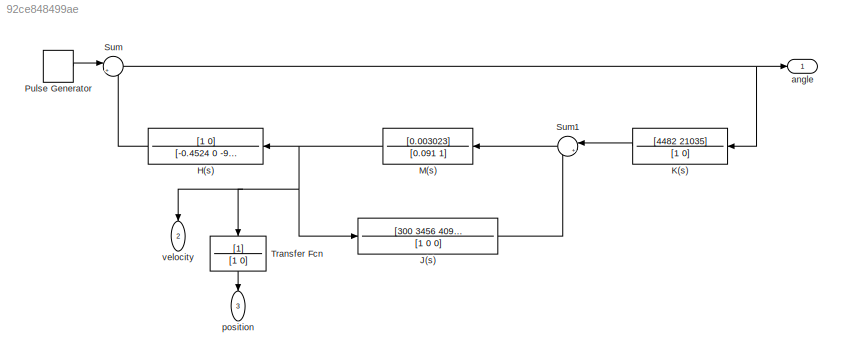
MODEL slx_92ce848499ae
KIND model
CONFIG AbsTol = auto
CONFIG EnableMultiTasking = off
CONFIG FixedStep = auto
CONFIG MaxStep = auto
CONFIG MinStep = auto
CONFIG RelTol = 1e-3
CONFIG SampleTimeConstraint = Unconstrained
CONFIG SolverName = VariableStepAuto
CONFIG StartTime = 0.0
CONFIG StopTime = 20
BLOCK [TransferFcn] H(s)
  Denominator = [-0.4524 0 -9.8]
  NameLocation = top
  Numerator = [1 0]
BLOCK [TransferFcn] J(s)
  Denominator = [1 0 0]
  NameLocation = top
  Numerator = [300 3456 4091]
BLOCK [TransferFcn] K(s)
  Denominator = [1 0]
  NameLocation = top
  Numerator = [4482 21035]
BLOCK [TransferFcn] M(s)
  Denominator = [0.091 1]
  NameLocation = top
  Numerator = [0.003023]
BLOCK [DiscretePulseGenerator] Pulse Generator
  Amplitude = 1/36
  Period = 10
  PulseType = Time based
  PulseWidth = 0.1
BLOCK [Sum] Sum
  Inputs = |++
BLOCK [Sum] Sum1
  Inputs = |+-
  NameLocation = top
BLOCK [TransferFcn] Transfer Fcn
  Denominator = [1 0]
  NameLocation = left
BLOCK [Outport] angle
BLOCK [Outport] position
  NameLocation = left
  Port = 3
BLOCK [Outport] velocity
  NameLocation = left
  Port = 2
LINE H(s):1 -> Sum:2
LINE J(s):1 -> Sum1:2
LINE K(s):1 -> Sum1:1
NET M(s):1 -> H(s):1, J(s):1, Transfer Fcn:1, velocity:1
LINE Pulse Generator:1 -> Sum:1
LINE Sum1:1 -> M(s):1
NET Sum:1 -> K(s):1, angle:1
LINE Transfer Fcn:1 -> position:1
note: NET lines group one-source signal fan-out (src -> all destinations, sorted); 1:1 wires keep LINE
